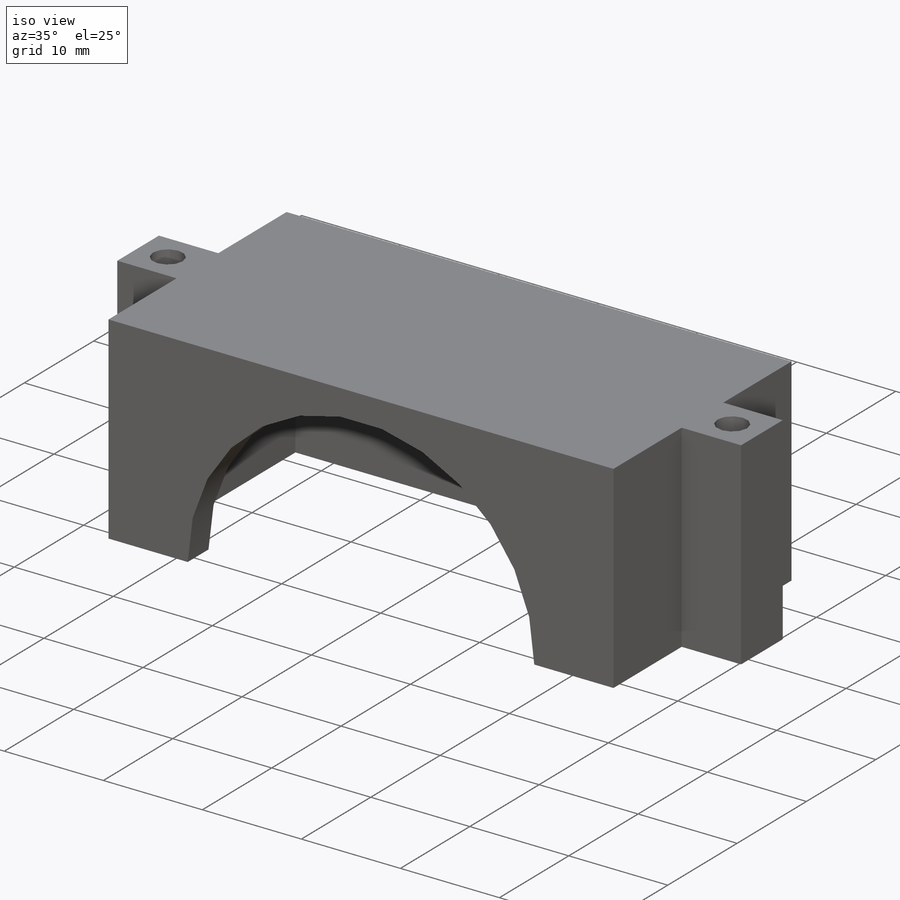
[diagram: iso view]
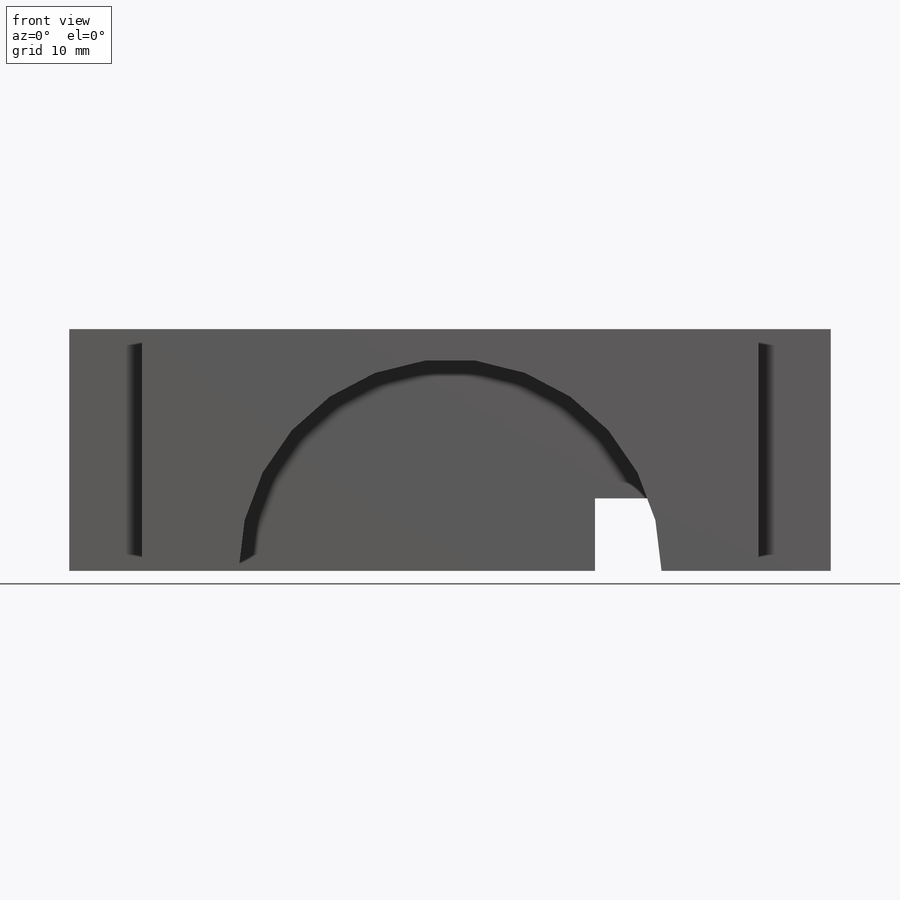
[diagram: front view]
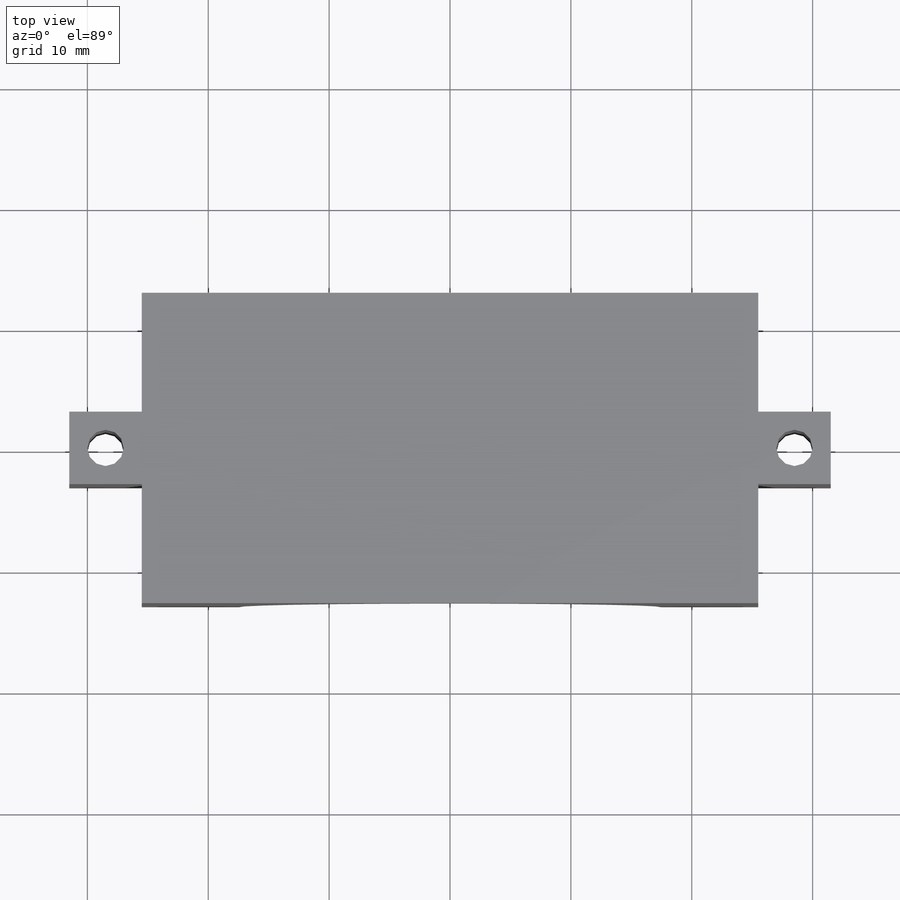
[diagram: top view]
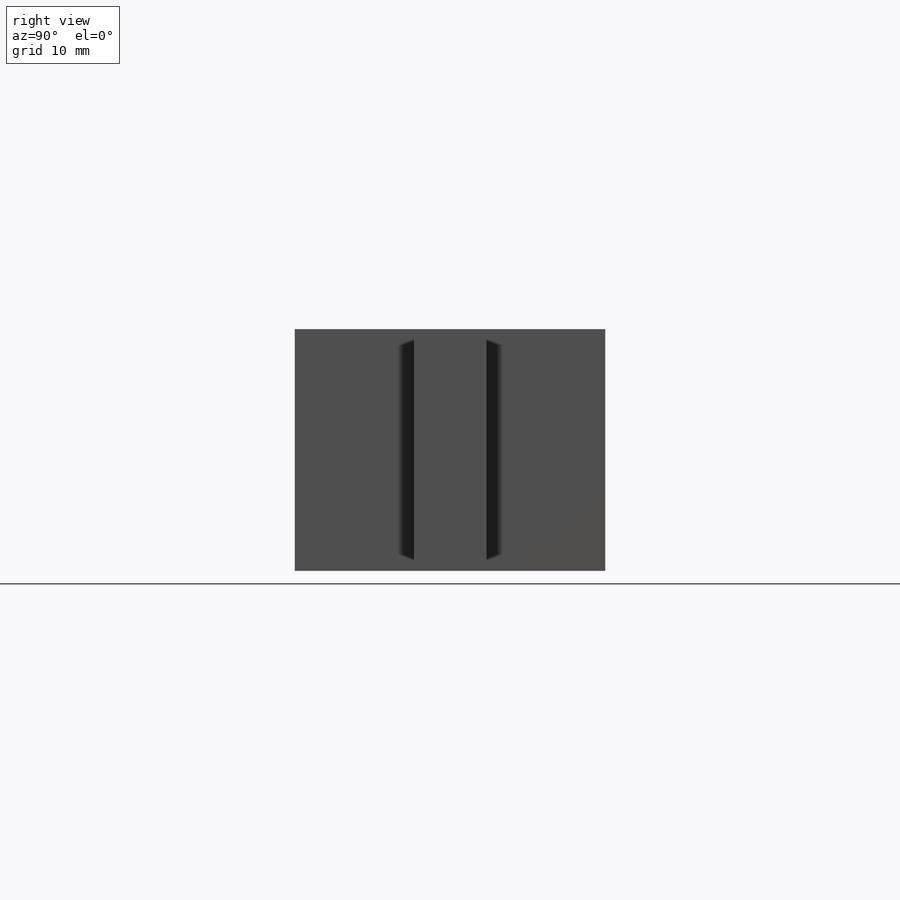
[diagram: right view]
SOLIDWORKS PART (.sldprt)
format: sldprt  version: not decoded by parser v0  size: 251,392 bytes
history: native  units: mm
features: sketch x5, cut_extrude x3, extrude x2, material x1 (+13 scaffold rows collapsed)
feature tree (24):
  scaffold x13  (default folders/planes/origin — collapsed)
  material  "Material <not specified>"
  sketch  "Sketch1"  dims[c1.D1=44.0mm c1.D2=19.18mm c1.D3=50.0mm c1.D4=25.18mm c1.D5=3.0mm c1.D6=3.0mm c2.D1=45.0mm c2.D2=19.68mm c2.D3=3.0mm c2.D4=3.0mm]
  extrude  "Boss-Extrude1"  Depth=20mm
  sketch  "Sketch3"  dims[D1=19.68mm D2=45.0mm D3=3.0mm]
  cut_extrude  "Cut-Extrude1"  Depth=17.5mm
  sketch  "Sketch4"  dims[D1=25.25mm]
  cut_extrude  "Cut-Extrude2"  [1 undecoded]
  sketch  "Sketch5"  dims[D1=3.5mm D2=6.0mm D3=10.0mm]
  cut_extrude  "Cut-Extrude3"  [1 undecoded]
  sketch  "Sketch6"  dims[D5=3.0mm D1=3.0mm D2=6.0mm D3=6.0mm D4=3.0mm]
  extrude  "Boss-Extrude2"  Depth=20mm
decode coverage: 8 of 10 modeling features carry decoded parameters
note: 2 parameter values undecoded
note: suppression state not decoded; provenance and decode notes live in map.json
